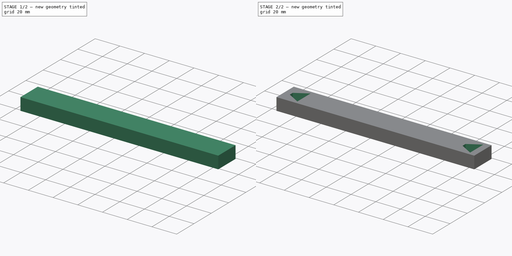
[diagram: build sequence overview — one tinted view per stage of 2, left to right]
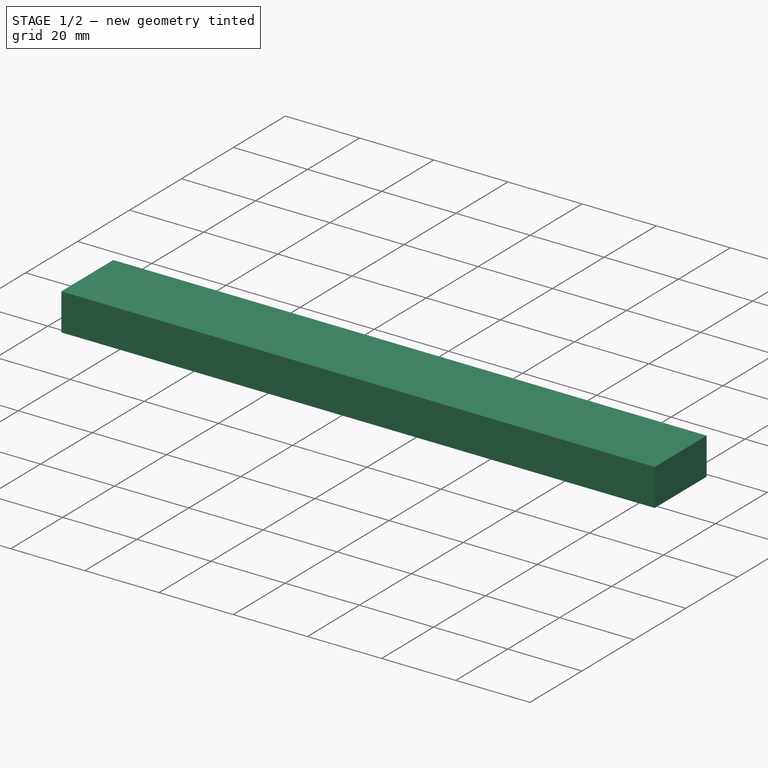
[diagram: stage 1 of 2 — iso view after this stage's code; geometry added in this stage tinted green]
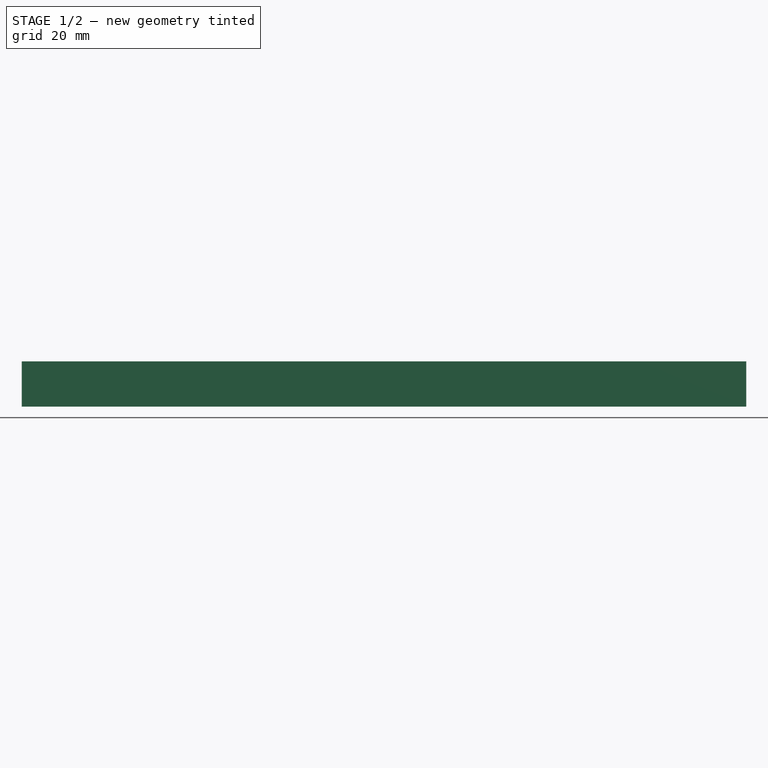
[diagram: stage 1 of 2 — front view after this stage's code; geometry added in this stage tinted green]
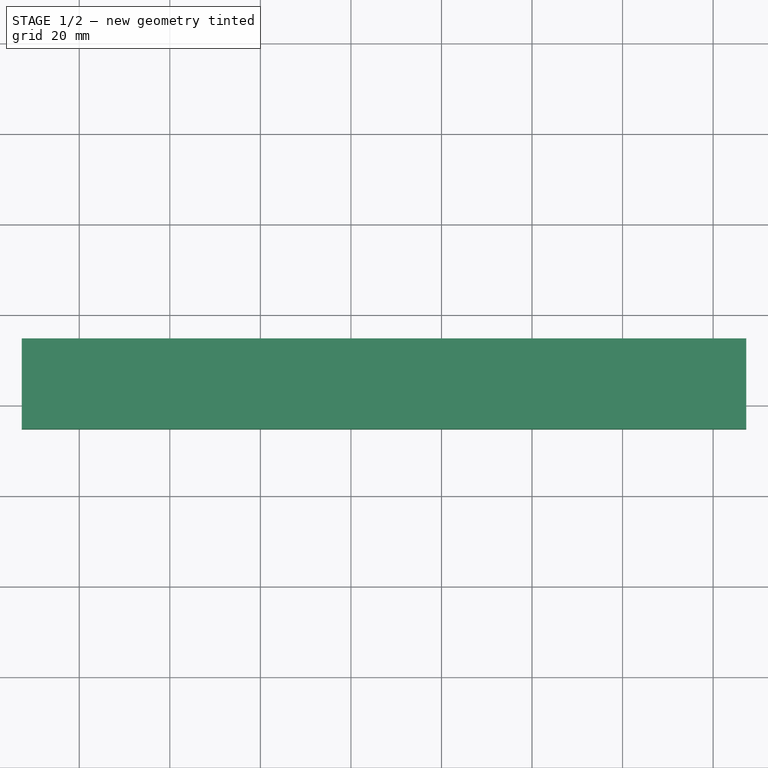
[diagram: stage 1 of 2 — top view after this stage's code; geometry added in this stage tinted green]
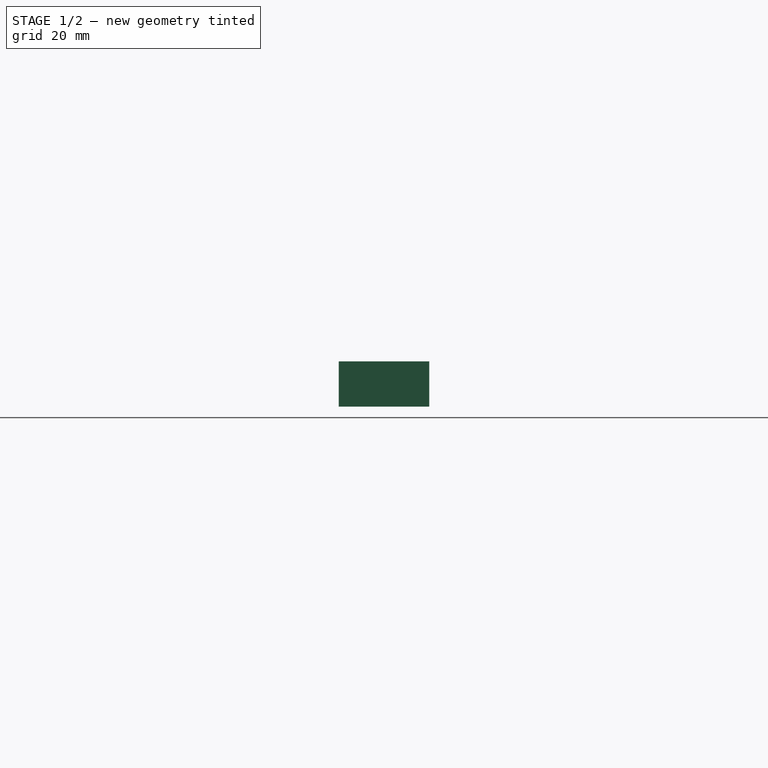
[diagram: stage 1 of 2 — right view after this stage's code; geometry added in this stage tinted green]
FCSTD DOCUMENT  (FreeCAD 0.21R33771 (Git))
Label: BeamB-0
License: All rights reserved
LicenseURL: https://en.wikipedia.org/wiki/All_rights_reserved
objects: Sketcher::SketchObject×2, PartDesign::Pad×1, PartDesign::Pocket×1, PartDesign::Body×1
note: 7 computed .brp shape members not serialized (recipe doc carries the construction recipe); baked Part::Feature solids carry a one-line shape summary decoded from their .brp

FEATURE [Sketcher::SketchObject] Sketch
  FullyConstrained = false
  MapMode = 5
  Support = -> [XY_Plane]
  sketch-geometry (4):
    g0: LineSegment StartX=-72.6957 StartY=14.747 StartZ=0 EndX=87.3043 EndY=14.747 EndZ=0
    g1: LineSegment StartX=87.3043 StartY=14.747 StartZ=0 EndX=87.3043 EndY=-5.25301 EndZ=0
    g2: LineSegment StartX=87.3043 StartY=-5.25301 StartZ=0 EndX=-72.6957 EndY=-5.25301 EndZ=0
    g3: LineSegment StartX=-72.6957 StartY=-5.25301 StartZ=0 EndX=-72.6957 EndY=14.747 EndZ=0
  constraints (10):
    c: Horizontal(g0)
    c: Coincident(g0,g1)
    c: Vertical(g1)
    c: Coincident(g1,g2)
    c: Horizontal(g2)
    c: Coincident(g2,g3)
    c: Coincident(g3,g0)
    c: Vertical(g3)
    c: DistanceX(g0,g0) = 160
    c: DistanceY(g2,g0) = 20
FEATURE [PartDesign::Pad] Pad
  Direction = (0,0,1)
  Length = 10
  Length2 = 10
  Profile = -> Sketch
  ReferenceAxis = -> Sketch [N_Axis]
  Type = 0
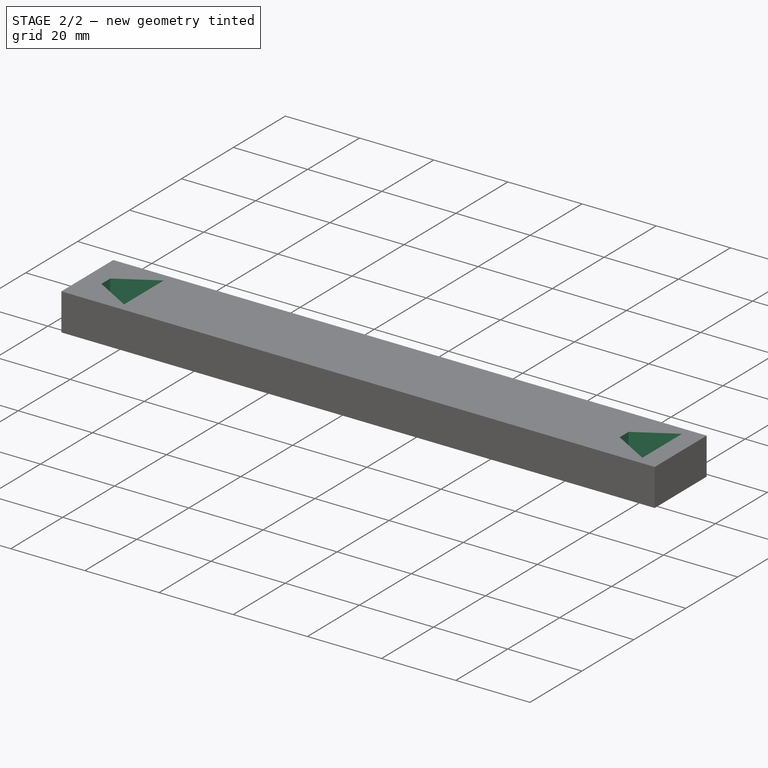
[diagram: stage 2 of 2 — iso view after this stage's code; geometry added in this stage tinted green]
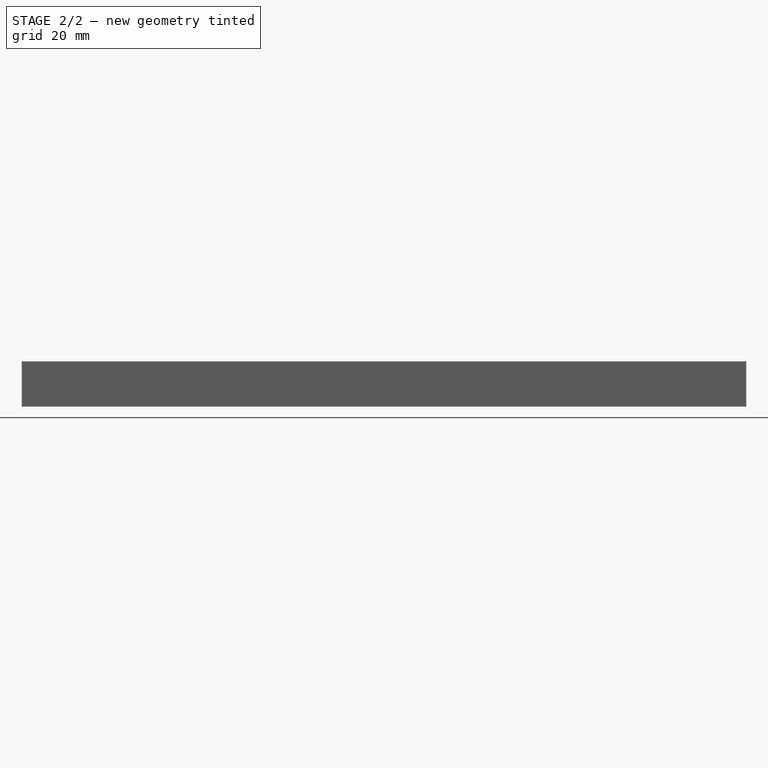
[diagram: stage 2 of 2 — front view after this stage's code; geometry added in this stage tinted green]
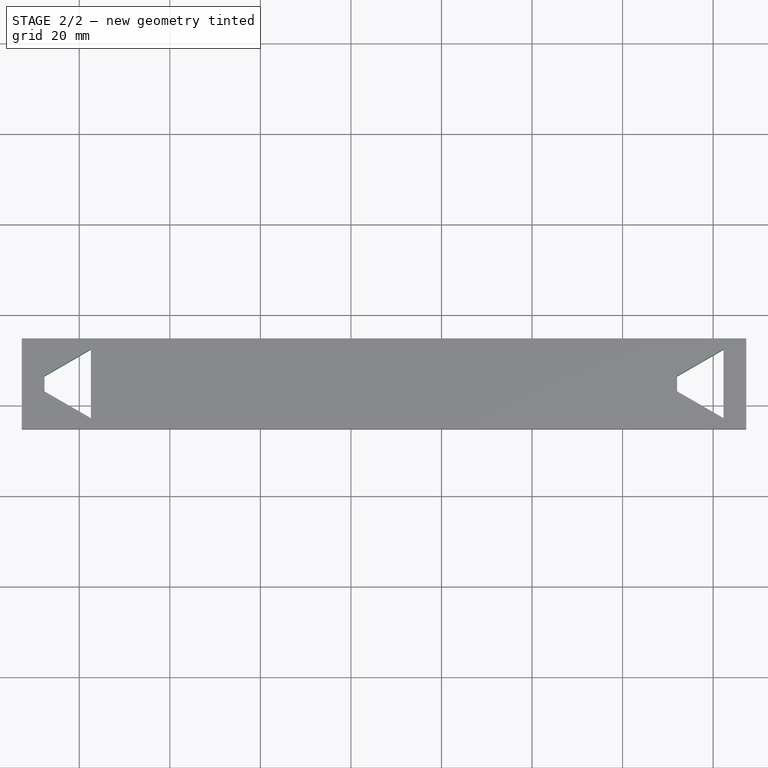
[diagram: stage 2 of 2 — top view after this stage's code; geometry added in this stage tinted green]
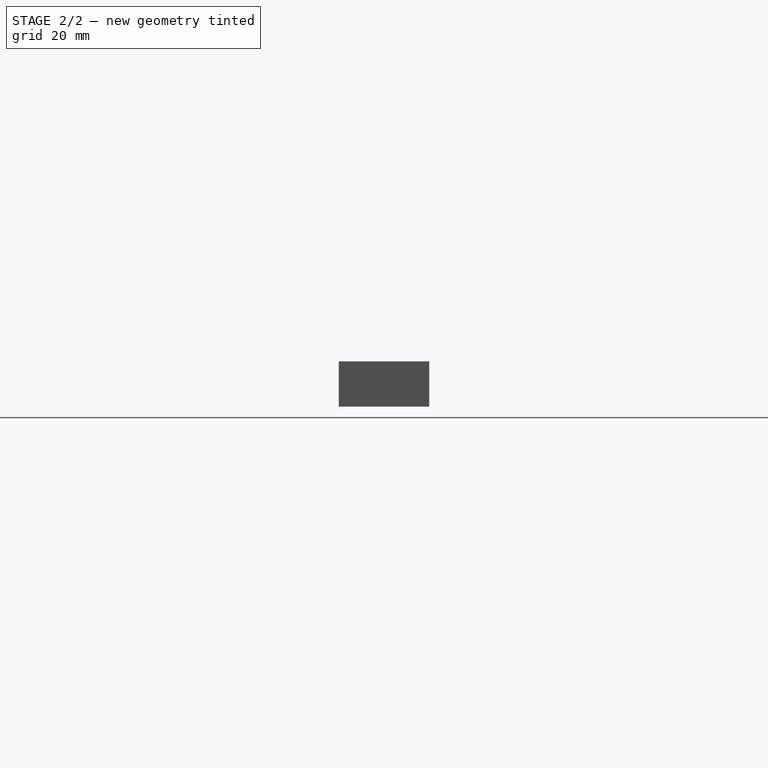
[diagram: stage 2 of 2 — right view after this stage's code; geometry added in this stage tinted green]
FEATURE [Sketcher::SketchObject] Sketch001
  ExternalGeometry = -> [Pad]
  FullyConstrained = true
  MapMode = 5
  Placement = pos=(0,0,10) rot=(0,0,1;0rad)
  Support = -> [Pad]
  sketch-geometry (8):
    g0: LineSegment StartX=-67.6957 StartY=3.03983 StartZ=0 EndX=-67.6957 EndY=6.45415 EndZ=0
    g1: LineSegment StartX=-67.6957 StartY=6.45415 StartZ=0 EndX=-57.4457 EndY=12.372 EndZ=0
    g2: LineSegment StartX=-57.4457 StartY=12.372 StartZ=0 EndX=-57.4457 EndY=-2.87801 EndZ=0
    g3: LineSegment StartX=-57.4457 StartY=-2.87801 StartZ=0 EndX=-67.6957 EndY=3.03983 EndZ=0
    g4: LineSegment StartX=72.0543 StartY=3.03983 StartZ=0 EndX=72.0543 EndY=6.45415 EndZ=0
    g5: LineSegment StartX=72.0543 StartY=6.45415 StartZ=0 EndX=82.3043 EndY=12.372 EndZ=0
    g6: LineSegment StartX=82.3043 StartY=12.372 StartZ=0 EndX=82.3043 EndY=-2.87801 EndZ=0
    g7: LineSegment StartX=82.3043 StartY=-2.87801 StartZ=0 EndX=72.0543 EndY=3.03983 EndZ=0
  constraints (24):
    c: Vertical(g0)
    c: Coincident(g0,g1)
    c: Coincident(g1,g2)
    c: Vertical(g2)
    c: Coincident(g2,g3)
    c: Coincident(g3,g0)
    c: Vertical(g4)
    c: Coincident(g4,g5)
    c: Coincident(g5,g6)
    c: Coincident(g6,g7)
    c: Coincident(g7,g4)
    c: Angle(g6,g7) = 1.0472
    c: Vertical(g6)
    c: Angle(g5,g6) = 1.0472
    c: Angle(g2,g3) = 1.0472
    c: Angle(g1,g2) = 1.0472
    c: DistanceY(g1,g-3) = 2.375
    c: DistanceY(g-3,g2) = 2.375
    c: DistanceX(g0,g2) = 10.25
    c: DistanceX(g-3,g0) = 5
    c: DistanceX(g5,g-4) = 5
    c: DistanceX(g4,g5) = 10.25
    c: DistanceY(g-4,g6) = 2.375
    c: DistanceY(g5,g-4) = 2.375
FEATURE [PartDesign::Pocket] Pocket
  BaseFeature = -> Pad
  Direction = (0,0,-1)
  Length = 10
  Length2 = 5
  Profile = -> Sketch001
  ReferenceAxis = -> Sketch001 [N_Axis]
  Type = 0
FEATURE [PartDesign::Body] Body
  Group = -> [Sketch,Pad,Sketch001,Pocket]
  Origin = -> Origin
  Tip = -> Pocket
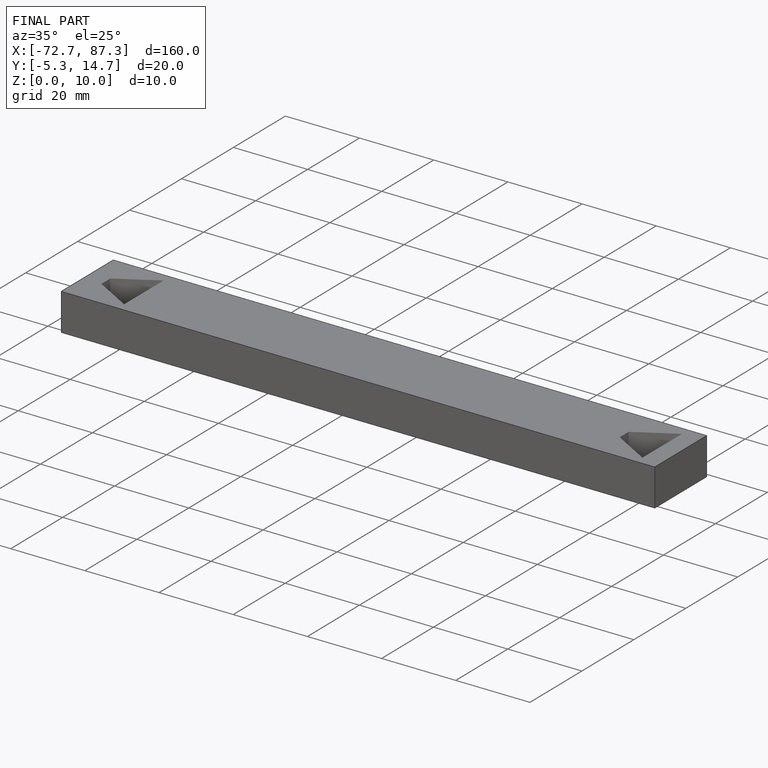
[diagram: finished part — iso view with bounding-box wireframe]
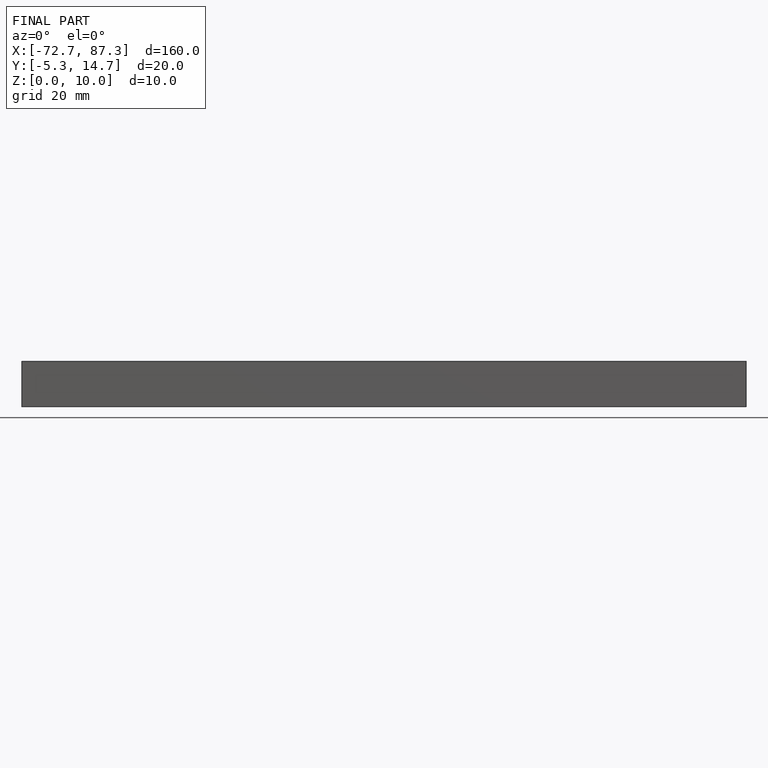
[diagram: finished part — front view with bounding-box wireframe]
